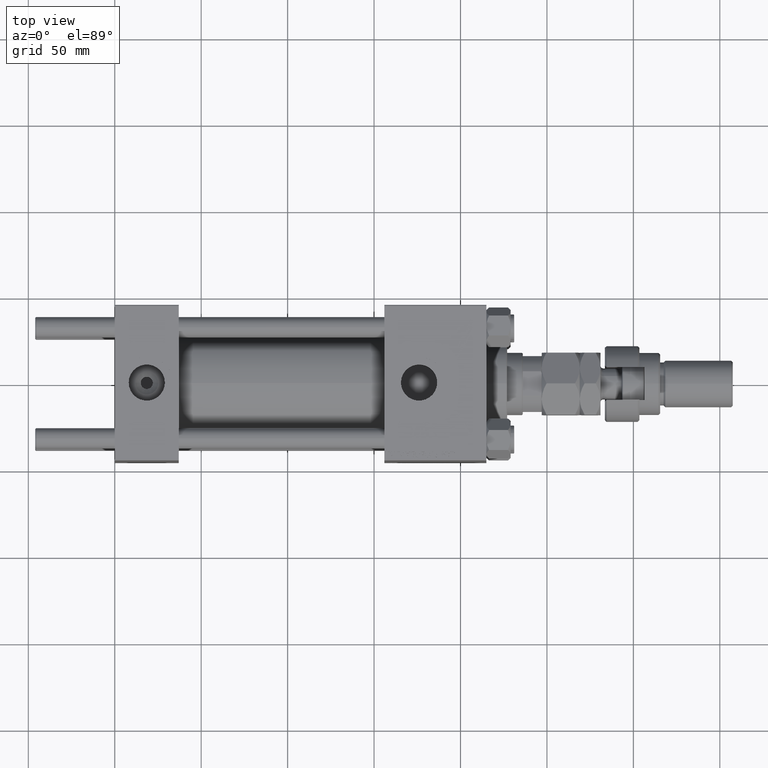
[diagram: clean part render]
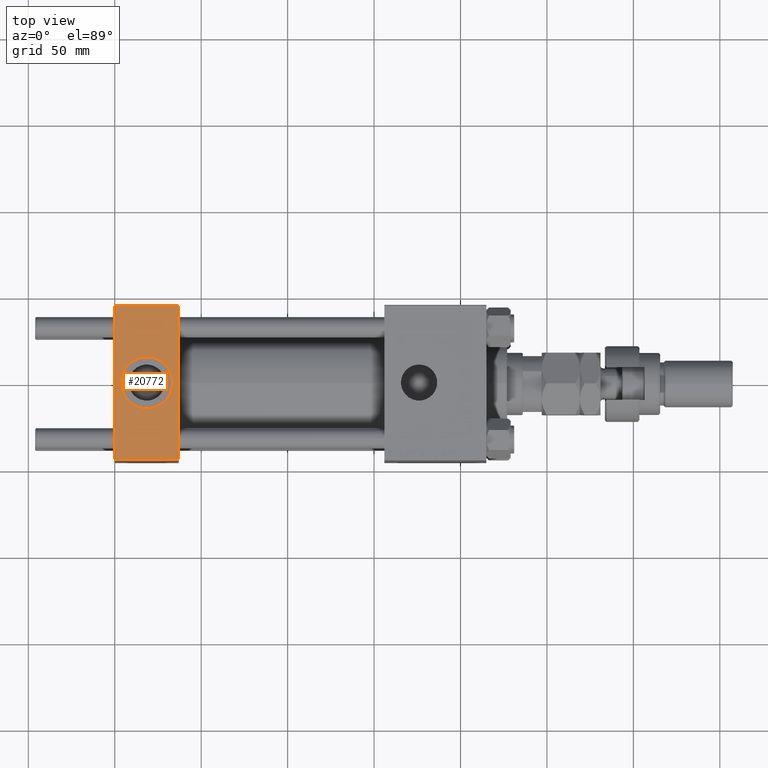
[diagram: same view with one face highlighted and labeled with its STEP entity id]
A machine part, top view. The second image highlights one B-rep face of the part: STEP entity #20772.
In plain terms, the highlighted planar face has unit normal (0, 0, -1).
Its self-contained STEP definition (entity closure, byte-faithful):
#107 = ORIENTED_EDGE ( 'NONE', *, *, #45658, .F. ) ;
#975 = ORIENTED_EDGE ( 'NONE', *, *, #3109, .T. ) ;
#1447 = DIRECTION ( 'NONE',  ( 0.000000000000000000, -1.000000000000000000, -1.541976423090495387E-16 ) ) ;
#1716 = FACE_OUTER_BOUND ( 'NONE', #45749, .T. ) ;
#1724 = EDGE_CURVE ( 'NONE', #39639, #43677, #22385, .T. ) ;
#2081 = DIRECTION ( 'NONE',  ( 1.000000000000000000, 0.000000000000000000, 0.000000000000000000 ) ) ;
#3109 = EDGE_CURVE ( 'NONE', #23215, #33426, #3743, .T. ) ;
#3172 = LINE ( 'NONE', #47521, #36018 ) ;
#3743 = LINE ( 'NONE', #32053, #6960 ) ;
#6960 = VECTOR ( 'NONE', #41120, 1000.000000000000000 ) ;
#7087 = EDGE_CURVE ( 'NONE', #33426, #39639, #3172, .T. ) ;
#8432 = CARTESIAN_POINT ( 'NONE',  ( 33.50000000000000000, -8.673617379884038628E-15, 45.00000000000000711 ) ) ;
#9102 = EDGE_CURVE ( 'NONE', #50217, #40653, #47209, .T. ) ;
#9474 = CARTESIAN_POINT ( 'NONE',  ( 18.50000000000000000, -8.673617379884038628E-15, 45.00000000000000711 ) ) ;
#10145 = ORIENTED_EDGE ( 'NONE', *, *, #1724, .T. ) ;
#13975 = PLANE ( 'NONE',  #30429 ) ;
#15065 = EDGE_LOOP ( 'NONE', ( #34745, #27698 ) ) ;
#16754 = DIRECTION ( 'NONE',  ( 1.000000000000000000, 0.000000000000000000, 0.000000000000000000 ) ) ;
#16776 = CARTESIAN_POINT ( 'NONE',  ( 37.00000000000000000, 44.49999999999998579, 45.00000000000001421 ) ) ;
#17078 = VECTOR ( 'NONE', #1447, 1000.000000000000000 ) ;
#18363 = CARTESIAN_POINT ( 'NONE',  ( 37.00000000000000000, -44.49999999999998579, 45.00000000000000000 ) ) ;
#19044 = CARTESIAN_POINT ( 'NONE',  ( 0.000000000000000000, -44.49999999999995737, 45.00000000000000000 ) ) ;
#20772 = ADVANCED_FACE ( 'NONE', ( #38289, #1716 ), #13975, .F. ) ;
#22385 = LINE ( 'NONE', #18363, #44024 ) ;
#22519 = LINE ( 'NONE', #33770, #17078 ) ;
#23215 = VERTEX_POINT ( 'NONE', #16776 ) ;
#25770 = DIRECTION ( 'NONE',  ( 0.000000000000000000, 0.000000000000000000, 1.000000000000000000 ) ) ;
#25848 = AXIS2_PLACEMENT_3D ( 'NONE', #9474, #25770, #38306 ) ;
#26283 = DIRECTION ( 'NONE',  ( 0.000000000000000000, 1.000000000000000000, 1.541976423090495633E-16 ) ) ;
#26698 = CARTESIAN_POINT ( 'NONE',  ( 0.000000000000000000, 44.49999999999998579, 45.00000000000001421 ) ) ;
#27698 = ORIENTED_EDGE ( 'NONE', *, *, #38196, .F. ) ;
#30429 = AXIS2_PLACEMENT_3D ( 'NONE', #46596, #50869, #26283 ) ;
#32053 = CARTESIAN_POINT ( 'NONE',  ( 0.000000000000000000, 44.49999999999998579, 45.00000000000001421 ) ) ;
#33426 = VERTEX_POINT ( 'NONE', #26698 ) ;
#33770 = CARTESIAN_POINT ( 'NONE',  ( 37.00000000000000000, 44.99999999999998579, 45.00000000000001421 ) ) ;
#34745 = ORIENTED_EDGE ( 'NONE', *, *, #9102, .F. ) ;
#35742 = DIRECTION ( 'NONE',  ( 0.000000000000000000, -1.000000000000000000, -1.541976423090495387E-16 ) ) ;
#35773 = CARTESIAN_POINT ( 'NONE',  ( 3.499999999999997780, -6.836647181163008250E-15, 45.00000000000000711 ) ) ;
#36018 = VECTOR ( 'NONE', #35742, 1000.000000000000000 ) ;
#37281 = AXIS2_PLACEMENT_3D ( 'NONE', #49641, #49376, #16754 ) ;
#38196 = EDGE_CURVE ( 'NONE', #40653, #50217, #38982, .T. ) ;
#38289 = FACE_BOUND ( 'NONE', #15065, .T. ) ;
#38306 = DIRECTION ( 'NONE',  ( 1.000000000000000000, 0.000000000000000000, 0.000000000000000000 ) ) ;
#38982 = CIRCLE ( 'NONE', #37281, 15.00000000000000355 ) ;
#39639 = VERTEX_POINT ( 'NONE', #19044 ) ;
#40246 = ORIENTED_EDGE ( 'NONE', *, *, #7087, .T. ) ;
#40653 = VERTEX_POINT ( 'NONE', #35773 ) ;
#41120 = DIRECTION ( 'NONE',  ( -1.000000000000000000, 0.000000000000000000, 0.000000000000000000 ) ) ;
#43677 = VERTEX_POINT ( 'NONE', #48235 ) ;
#44024 = VECTOR ( 'NONE', #2081, 1000.000000000000000 ) ;
#45658 = EDGE_CURVE ( 'NONE', #23215, #43677, #22519, .T. ) ;
#45749 = EDGE_LOOP ( 'NONE', ( #40246, #10145, #107, #975 ) ) ;
#46596 = CARTESIAN_POINT ( 'NONE',  ( 37.00000000000000000, 44.99999999999998579, 45.00000000000001421 ) ) ;
#47209 = CIRCLE ( 'NONE', #25848, 15.00000000000000355 ) ;
#47521 = CARTESIAN_POINT ( 'NONE',  ( 0.000000000000000000, 44.99999999999998579, 45.00000000000001421 ) ) ;
#48235 = CARTESIAN_POINT ( 'NONE',  ( 37.00000000000000000, -44.49999999999995737, 45.00000000000000000 ) ) ;
#49376 = DIRECTION ( 'NONE',  ( 0.000000000000000000, 0.000000000000000000, 1.000000000000000000 ) ) ;
#49641 = CARTESIAN_POINT ( 'NONE',  ( 18.50000000000000000, -8.673617379884038628E-15, 45.00000000000000711 ) ) ;
#50217 = VERTEX_POINT ( 'NONE', #8432 ) ;
#50869 = DIRECTION ( 'NONE',  ( 0.000000000000000000, 1.541976423090495633E-16, -1.000000000000000000 ) ) ;